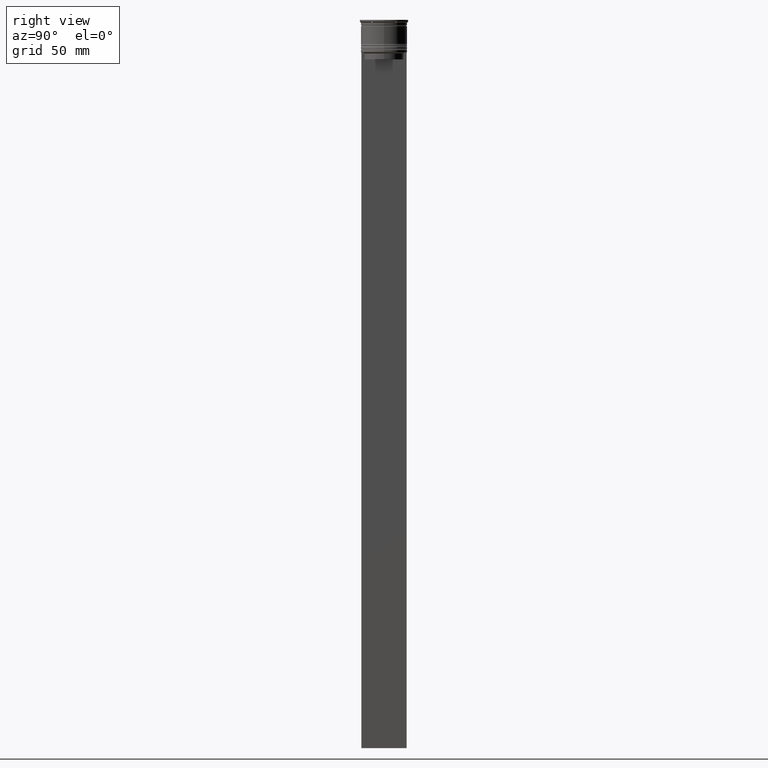
[diagram: clean part render]
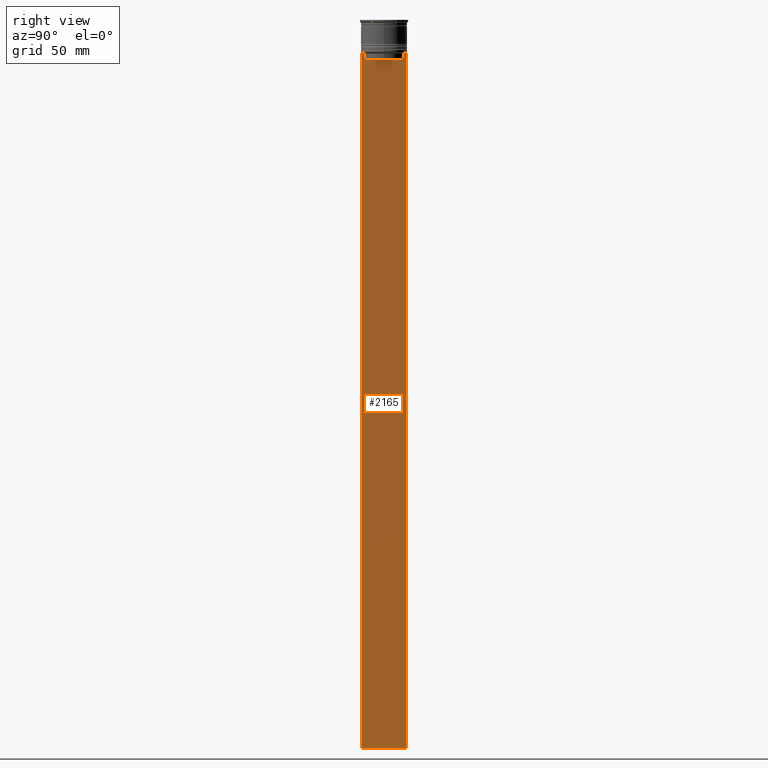
[diagram: same view with one face highlighted and labeled with its STEP entity id]
A machine part, right view. The second image highlights one B-rep face of the part: STEP entity #2165.
In plain terms, the highlighted planar face has unit normal (-1, 0, 0).
Its self-contained STEP definition (entity closure, byte-faithful):
#29 = EDGE_CURVE ( 'NONE', #2395, #1944, #1280, .T. ) ;
#108 = CARTESIAN_POINT ( 'NONE',  ( 0.4999999999999998890, -9.749999999999998224, 5.525624189766635830 ) ) ;
#119 = CARTESIAN_POINT ( 'NONE',  ( 0.4999999999999998890, -9.749999999999998224, -14.00000000000000178 ) ) ;
#141 = DIRECTION ( 'NONE',  ( 0.000000000000000000, 0.000000000000000000, -1.000000000000000000 ) ) ;
#160 = VECTOR ( 'NONE', #141, 1000.000000000000000 ) ;
#176 = CARTESIAN_POINT ( 'NONE',  ( 0.4999999999999998890, -9.749999999999998224, -314.0000000000000000 ) ) ;
#183 = DIRECTION ( 'NONE',  ( 0.000000000000000000, 0.000000000000000000, -1.000000000000000000 ) ) ;
#281 = CARTESIAN_POINT ( 'NONE',  ( 0.4999999999999998890, -8.385105843100616241, -14.50000000000000000 ) ) ;
#301 = CARTESIAN_POINT ( 'NONE',  ( 0.4999999999999998890, 9.750000000000001776, -14.00000000000000178 ) ) ;
#303 = VERTEX_POINT ( 'NONE', #1860 ) ;
#314 = CARTESIAN_POINT ( 'NONE',  ( 0.4999999999999998890, -9.749999999999998224, -14.00000000000000178 ) ) ;
#324 = EDGE_CURVE ( 'NONE', #303, #2311, #2125, .T. ) ;
#327 = DIRECTION ( 'NONE',  ( 0.000000000000000000, -1.000000000000000000, 0.000000000000000000 ) ) ;
#365 = VERTEX_POINT ( 'NONE', #2077 ) ;
#375 = VERTEX_POINT ( 'NONE', #867 ) ;
#390 = LINE ( 'NONE', #2355, #1119 ) ;
#433 = EDGE_LOOP ( 'NONE', ( #908, #1270, #2539, #2469, #1707, #2380, #678, #2385, #1486, #1022 ) ) ;
#450 = CARTESIAN_POINT ( 'NONE',  ( 0.4999999999999998890, 8.552060201981378285, -14.33334167021640582 ) ) ;
#464 = VERTEX_POINT ( 'NONE', #1727 ) ;
#584 = EDGE_CURVE ( 'NONE', #365, #2209, #1143, .T. ) ;
#622 = VECTOR ( 'NONE', #1952, 1000.000000000000000 ) ;
#674 = VECTOR ( 'NONE', #2511, 1000.000000000000000 ) ;
#678 = ORIENTED_EDGE ( 'NONE', *, *, #1014, .T. ) ;
#713 = VECTOR ( 'NONE', #887, 1000.000000000000000 ) ;
#714 = EDGE_CURVE ( 'NONE', #1652, #303, #1781, .T. ) ;
#715 = DIRECTION ( 'NONE',  ( 0.000000000000000000, -1.000000000000000000, 0.000000000000000000 ) ) ;
#721 = DIRECTION ( 'NONE',  ( 0.000000000000000000, 0.000000000000000000, 1.000000000000000000 ) ) ;
#725 = LINE ( 'NONE', #2115, #713 ) ;
#783 = DIRECTION ( 'NONE',  ( -0.000000000000000000, -0.000000000000000000, 1.000000000000000000 ) ) ;
#867 = CARTESIAN_POINT ( 'NONE',  ( 0.4999999999999998890, 8.385105843100616241, -14.50000000000000000 ) ) ;
#875 = CARTESIAN_POINT ( 'NONE',  ( 0.4999999999999998890, -8.885943956609230199, -14.00000000000000178 ) ) ;
#887 = DIRECTION ( 'NONE',  ( 0.000000000000000000, 0.000000000000000000, -1.000000000000000000 ) ) ;
#908 = ORIENTED_EDGE ( 'NONE', *, *, #29, .T. ) ;
#946 = CARTESIAN_POINT ( 'NONE',  ( 0.4999999999999998890, -9.749999999999998224, 5.525624189766635830 ) ) ;
#947 = EDGE_CURVE ( 'NONE', #954, #365, #2356, .T. ) ;
#954 = VERTEX_POINT ( 'NONE', #314 ) ;
#1014 = EDGE_CURVE ( 'NONE', #2311, #954, #1753, .T. ) ;
#1022 = ORIENTED_EDGE ( 'NONE', *, *, #2107, .F. ) ;
#1030 = CARTESIAN_POINT ( 'NONE',  ( 0.4999999999999998890, 8.885943956609230199, -14.00000000000000178 ) ) ;
#1046 = CARTESIAN_POINT ( 'NONE',  ( 0.4999999999999998890, 8.885943956609230199, -14.00000000000000178 ) ) ;
#1057 = CARTESIAN_POINT ( 'NONE',  ( 0.4999999999999998890, 8.719005771582347464, -14.16667453442325453 ) ) ;
#1098 = CARTESIAN_POINT ( 'NONE',  ( 0.4999999999999998890, -9.749999999999998224, -14.00000000000000178 ) ) ;
#1103 = LINE ( 'NONE', #1286, #674 ) ;
#1119 = VECTOR ( 'NONE', #183, 1000.000000000000000 ) ;
#1143 = LINE ( 'NONE', #176, #622 ) ;
#1244 = CARTESIAN_POINT ( 'NONE',  ( 0.4999999999999998890, -8.885943956609230199, -14.00000000000000178 ) ) ;
#1270 = ORIENTED_EDGE ( 'NONE', *, *, #1507, .T. ) ;
#1280 = LINE ( 'NONE', #1098, #2414 ) ;
#1286 = CARTESIAN_POINT ( 'NONE',  ( 0.4999999999999998890, 8.400000000000003908, -17.00000000000000000 ) ) ;
#1303 = DIRECTION ( 'NONE',  ( -1.000000000000000000, 0.000000000000000000, 0.000000000000000000 ) ) ;
#1338 = CARTESIAN_POINT ( 'NONE',  ( 0.4999999999999998890, -8.385105843100616241, -17.00000000000000000 ) ) ;
#1449 = CARTESIAN_POINT ( 'NONE',  ( 0.4999999999999998890, 8.385105843100616241, -14.50000000000000000 ) ) ;
#1486 = ORIENTED_EDGE ( 'NONE', *, *, #584, .T. ) ;
#1489 = FACE_OUTER_BOUND ( 'NONE', #433, .T. ) ;
#1507 = EDGE_CURVE ( 'NONE', #1944, #375, #2082, .T. ) ;
#1639 = EDGE_CURVE ( 'NONE', #464, #1652, #1103, .T. ) ;
#1652 = VERTEX_POINT ( 'NONE', #1338 ) ;
#1707 = ORIENTED_EDGE ( 'NONE', *, *, #714, .T. ) ;
#1715 = CARTESIAN_POINT ( 'NONE',  ( 0.4999999999999998890, 9.750000000000001776, -314.0000000000000000 ) ) ;
#1727 = CARTESIAN_POINT ( 'NONE',  ( 0.4999999999999998890, 8.385105843100616241, -17.00000000000000000 ) ) ;
#1753 = LINE ( 'NONE', #119, #1961 ) ;
#1765 = EDGE_CURVE ( 'NONE', #375, #464, #390, .T. ) ;
#1781 = LINE ( 'NONE', #2573, #2215 ) ;
#1860 = CARTESIAN_POINT ( 'NONE',  ( 0.4999999999999998890, -8.385105843100616241, -14.50000000000000000 ) ) ;
#1944 = VERTEX_POINT ( 'NONE', #1030 ) ;
#1952 = DIRECTION ( 'NONE',  ( 0.000000000000000000, 1.000000000000000000, 0.000000000000000000 ) ) ;
#1961 = VECTOR ( 'NONE', #327, 1000.000000000000000 ) ;
#2077 = CARTESIAN_POINT ( 'NONE',  ( 0.4999999999999998890, -9.749999999999998224, -314.0000000000000000 ) ) ;
#2082 = B_SPLINE_CURVE_WITH_KNOTS ( 'NONE', 3,
 ( #1046, #1057, #450, #1449 ),
 .UNSPECIFIED., .F., .F.,
 ( 4, 4 ),
 ( 0.01511546479386908018, 0.01582316445439079997 ),
 .UNSPECIFIED. ) ;
#2107 = EDGE_CURVE ( 'NONE', #2395, #2209, #725, .T. ) ;
#2115 = CARTESIAN_POINT ( 'NONE',  ( 0.4999999999999998890, 9.750000000000001776, 5.525624189766635830 ) ) ;
#2125 = B_SPLINE_CURVE_WITH_KNOTS ( 'NONE', 3,
 ( #281, #2454, #2260, #1244 ),
 .UNSPECIFIED., .F., .F.,
 ( 4, 4 ),
 ( 0.03898465126933130243, 0.03969388910599658260 ),
 .UNSPECIFIED. ) ;
#2165 = ADVANCED_FACE ( 'NONE', ( #1489 ), #2318, .F. ) ;
#2209 = VERTEX_POINT ( 'NONE', #1715 ) ;
#2215 = VECTOR ( 'NONE', #783, 1000.000000000000000 ) ;
#2260 = CARTESIAN_POINT ( 'NONE',  ( 0.4999999999999998890, -8.719005764482787413, -14.16667454151160044 ) ) ;
#2311 = VERTEX_POINT ( 'NONE', #875 ) ;
#2318 = PLANE ( 'NONE',  #2547 ) ;
#2355 = CARTESIAN_POINT ( 'NONE',  ( 0.4999999999999998890, 8.385105843100616241, 0.000000000000000000 ) ) ;
#2356 = LINE ( 'NONE', #946, #160 ) ;
#2380 = ORIENTED_EDGE ( 'NONE', *, *, #324, .T. ) ;
#2385 = ORIENTED_EDGE ( 'NONE', *, *, #947, .T. ) ;
#2395 = VERTEX_POINT ( 'NONE', #301 ) ;
#2414 = VECTOR ( 'NONE', #715, 1000.000000000000000 ) ;
#2454 = CARTESIAN_POINT ( 'NONE',  ( 0.4999999999999998890, -8.552060194457768105, -14.33334167772667556 ) ) ;
#2469 = ORIENTED_EDGE ( 'NONE', *, *, #1639, .T. ) ;
#2511 = DIRECTION ( 'NONE',  ( 0.000000000000000000, -1.000000000000000000, 0.000000000000000000 ) ) ;
#2539 = ORIENTED_EDGE ( 'NONE', *, *, #1765, .T. ) ;
#2547 = AXIS2_PLACEMENT_3D ( 'NONE', #108, #1303, #721 ) ;
#2573 = CARTESIAN_POINT ( 'NONE',  ( 0.4999999999999998890, -8.385105843100616241, 0.000000000000000000 ) ) ;